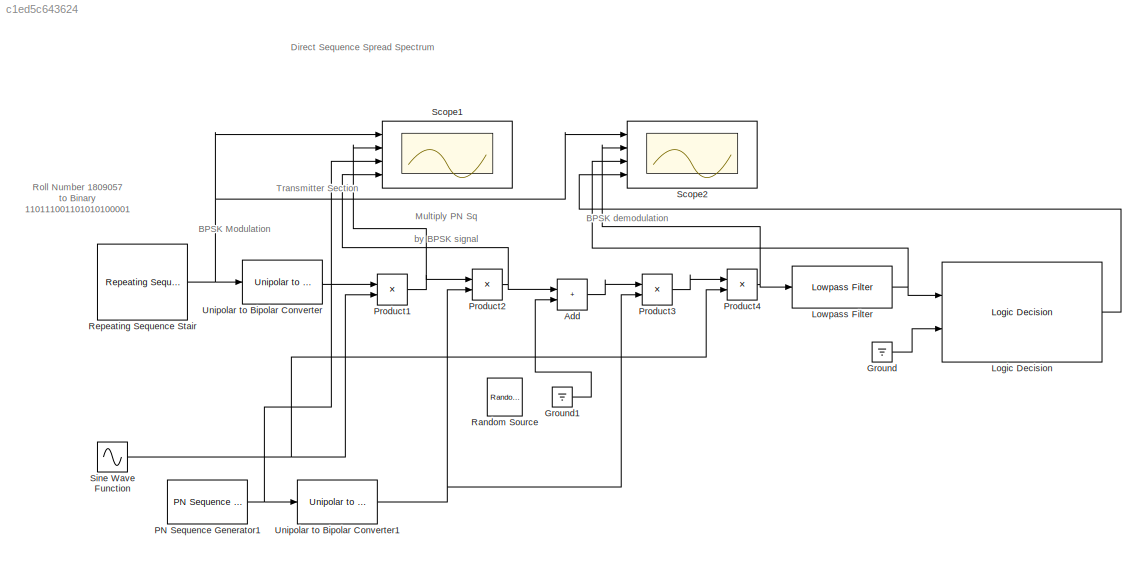
MODEL slx_c1ed5c643624
KIND model
CONFIG AbsTol = auto
CONFIG EnableMultiTasking = off
CONFIG FixedStep = auto
CONFIG MaxStep = auto
CONFIG MinStep = auto
CONFIG RelTol = 1e-3
CONFIG SampleTimeConstraint = Unconstrained
CONFIG Solver = VariableStepAuto
CONFIG SolverName = VariableStepAuto
CONFIG StartTime = 0.0
CONFIG StopTime = 10.0
BLOCK [Sum] Add
  IconShape = rectangular
  Ports = [2, 1]
BLOCK [Ground] Ground
BLOCK [Ground] Ground1
BLOCK [Reference] Logic Decision  REF=msbUtilities/Logic Decision
  Ports = [2, 1]
  SourceBlock = msbUtilities/Logic Decision
  SourceProductBaseCode = AM
  SourceType = LogicDecision
BLOCK [Reference] Lowpass Filter  REF=dspfdesign/Lowpass Filter
  Ports = [1, 1]
  SourceBlock = dspfdesign/Lowpass Filter
  SourceProductBaseCode = DS
  SourceType = dsp.LowpassFilter
BLOCK [Reference] PN Sequence Generator1  REF=commseqgen3/PN Sequence
Generator
  Ports = [0, 1]
  SourceBlock = commseqgen3/PN Sequence\nGenerator
  SourceProductBaseCode = CM
  SourceType = PN Sequence Generator
BLOCK [Product] Product1
  Ports = [2, 1]
BLOCK [Product] Product2
  Ports = [2, 1]
BLOCK [Product] Product3
  Ports = [2, 1]
BLOCK [Product] Product4
  Ports = [2, 1]
BLOCK [Reference] Random Source  REF=dspsrcs4/Random
Source
  Ports = [0, 1]
  SourceBlock = dspsrcs4/Random\nSource
  SourceProductBaseCode = DS
  SourceType = Random Source
  UserDataPersistent = on
BLOCK [Reference] Repeating Sequence Stair  REF=simulink/Sources/Repeating
Sequence
Stair
  Ports = [0, 1]
  SourceBlock = simulink/Sources/Repeating\nSequence\nStair
  SourceProductBaseCode = SL
  SourceType = Repeating Sequence Stair
BLOCK [Scope] Scope1
  Floating = off
  NumInputPorts = 4
  Ports = [4]
  ScopeSpecificationString = Simulink.scopes.TimeScopeBlockCfg('CurrentConfiguration', extmgr.ConfigurationSet(extmgr.Configuration('Core','General UI',true),extmgr.Configuration('Core','Source UI',true),extmgr.Configuration('Sources','WiredSimulink',true,'SampleTime','0.001'),extmgr.Configuration('Visuals','Time Domain',true,'TimeAxisLabels','All','SerializedDisplays',{struct('MinYLimReal','-0.125','MaxYLimReal','1.125','YLa...<+3667ch>
BLOCK [Scope] Scope2
  Floating = off
  NumInputPorts = 4
  Ports = [4]
  ScopeSpecificationString = Simulink.scopes.TimeScopeBlockCfg('CurrentConfiguration', extmgr.ConfigurationSet(extmgr.Configuration('Core','General UI',true),extmgr.Configuration('Core','Source UI',true),extmgr.Configuration('Sources','WiredSimulink',true,'SampleTime','0.0001','DataLoggingVariableName','ScopeData1'),extmgr.Configuration('Visuals','Time Domain',true,'TimeAxisLabels','All','SerializedDisplays',{struct('MinYLimR...<+3503ch>
BLOCK [Sin] Sine Wave Function
  Frequency = 2*pi*100
  Ports = [0, 1]
  SampleTime = .001
  Samples = 10000
BLOCK [Reference] Unipolar to Bipolar Converter  REF=commutil2/Unipolar to
Bipolar
Converter
  Ports = [1, 1]
  SourceBlock = commutil2/Unipolar to\nBipolar\nConverter
  SourceProductBaseCode = CM
  SourceType = Unipolar to Bipolar Converter
BLOCK [Reference] Unipolar to Bipolar Converter1  REF=commutil2/Unipolar to
Bipolar
Converter
  Ports = [1, 1]
  SourceBlock = commutil2/Unipolar to\nBipolar\nConverter
  SourceProductBaseCode = CM
  SourceType = Unipolar to Bipolar Converter
ANNOTATION (root): BPSK Modulation
ANNOTATION (root): BPSK demodulation
ANNOTATION (root): Transmitter Section
ANNOTATION (root): Direct Sequence Spread Spectrum
ANNOTATION (root): Multiply PN Sq by BPSK signal
ANNOTATION (root): Roll Number 1809057 to Binary 110111001101010100001
LINE Add:1 -> Product3:1
LINE Ground1:1 -> Add:2
LINE Ground:1 -> Logic Decision:2
LINE Logic Decision:1 -> Scope2:4
NET Lowpass Filter:1 -> Logic Decision:1, Scope2:3
NET PN Sequence Generator1:1 -> Scope1:3, Unipolar to Bipolar Converter1:1
NET Product1:1 -> Product2:1, Scope1:2
NET Product2:1 -> Add:1, Scope1:4
LINE Product3:1 -> Product4:1
NET Product4:1 -> Lowpass Filter:1, Scope2:2
NET Repeating Sequence Stair:1 -> Scope1:1, Scope2:1, Unipolar to Bipolar Converter:1
NET Sine Wave Function:1 -> Product1:2, Product4:2
NET Unipolar to Bipolar Converter1:1 -> Product2:2, Product3:2
LINE Unipolar to Bipolar Converter:1 -> Product1:1
note: NET lines group one-source signal fan-out (src -> all destinations, sorted); 1:1 wires keep LINE
